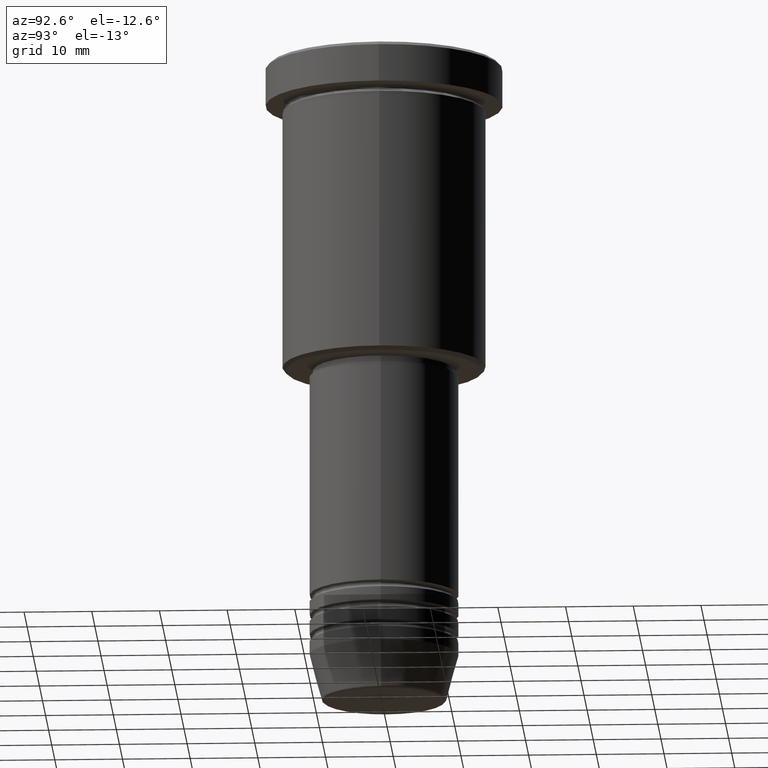
[diagram: clean part render]
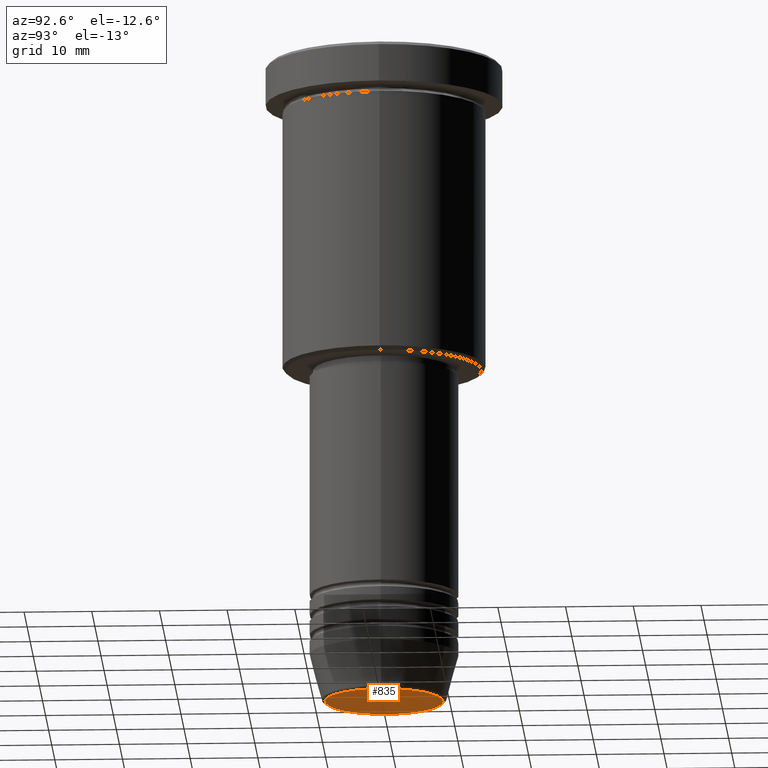
[diagram: same view with one face highlighted and labeled with its STEP entity id]
A machine part, auxiliary view. The second image highlights one B-rep face of the part: STEP entity #835.
In plain terms, the highlighted planar face has unit normal (0, -0, 1).
Its self-contained STEP definition (entity closure, byte-faithful):
#8 = AXIS2_PLACEMENT_3D ( 'NONE', #809, #798, #720 ) ;
#32 = CARTESIAN_POINT ( 'NONE',  ( 0.000000000000000000, 0.000000000000000000, -96.00000000000000000 ) ) ;
#79 = FACE_OUTER_BOUND ( 'NONE', #486, .T. ) ;
#142 = DIRECTION ( 'NONE',  ( 0.000000000000000000, 0.000000000000000000, -1.000000000000000000 ) ) ;
#317 = CIRCLE ( 'NONE', #509, 8.740692158992652949 ) ;
#411 = EDGE_CURVE ( 'NONE', #470, #828, #995, .T. ) ;
#470 = VERTEX_POINT ( 'NONE', #556 ) ;
#486 = EDGE_LOOP ( 'NONE', ( #1121, #563 ) ) ;
#509 = AXIS2_PLACEMENT_3D ( 'NONE', #32, #142, #855 ) ;
#533 = PLANE ( 'NONE',  #8 ) ;
#556 = CARTESIAN_POINT ( 'NONE',  ( -8.740692158992652949, 1.099999016768739259E-15, -96.00000000000000000 ) ) ;
#563 = ORIENTED_EDGE ( 'NONE', *, *, #411, .T. ) ;
#712 = AXIS2_PLACEMENT_3D ( 'NONE', #945, #865, #765 ) ;
#720 = DIRECTION ( 'NONE',  ( 1.000000000000000000, 0.000000000000000000, 0.000000000000000000 ) ) ;
#765 = DIRECTION ( 'NONE',  ( 1.000000000000000000, 0.000000000000000000, 0.000000000000000000 ) ) ;
#798 = DIRECTION ( 'NONE',  ( 0.000000000000000000, -0.000000000000000000, 1.000000000000000000 ) ) ;
#809 = CARTESIAN_POINT ( 'NONE',  ( 0.000000000000000000, 0.000000000000000000, -96.00000000000000000 ) ) ;
#828 = VERTEX_POINT ( 'NONE', #1181 ) ;
#835 = ADVANCED_FACE ( 'NONE', ( #79 ), #533, .F. ) ;
#855 = DIRECTION ( 'NONE',  ( 1.000000000000000000, 0.000000000000000000, 0.000000000000000000 ) ) ;
#865 = DIRECTION ( 'NONE',  ( 0.000000000000000000, 0.000000000000000000, -1.000000000000000000 ) ) ;
#945 = CARTESIAN_POINT ( 'NONE',  ( 0.000000000000000000, 0.000000000000000000, -96.00000000000000000 ) ) ;
#995 = CIRCLE ( 'NONE', #712, 8.740692158992652949 ) ;
#1079 = EDGE_CURVE ( 'NONE', #828, #470, #317, .T. ) ;
#1121 = ORIENTED_EDGE ( 'NONE', *, *, #1079, .T. ) ;
#1181 = CARTESIAN_POINT ( 'NONE',  ( 8.740692158992652949, 0.000000000000000000, -96.00000000000000000 ) ) ;